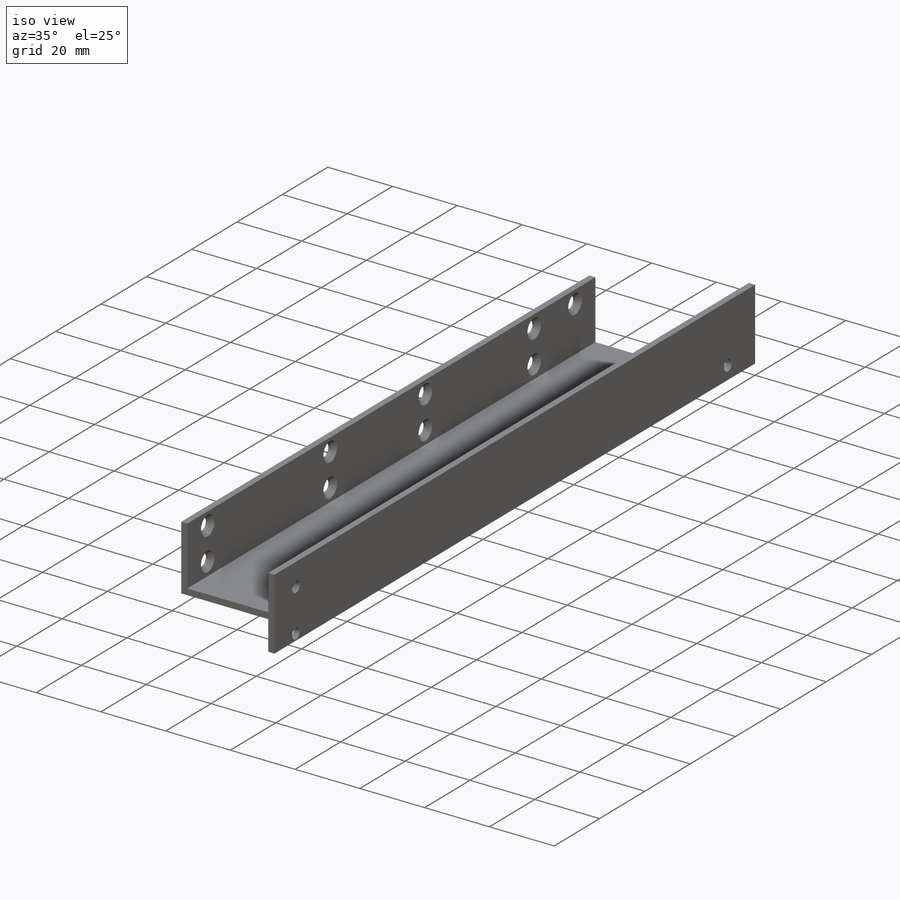
[diagram: iso view]
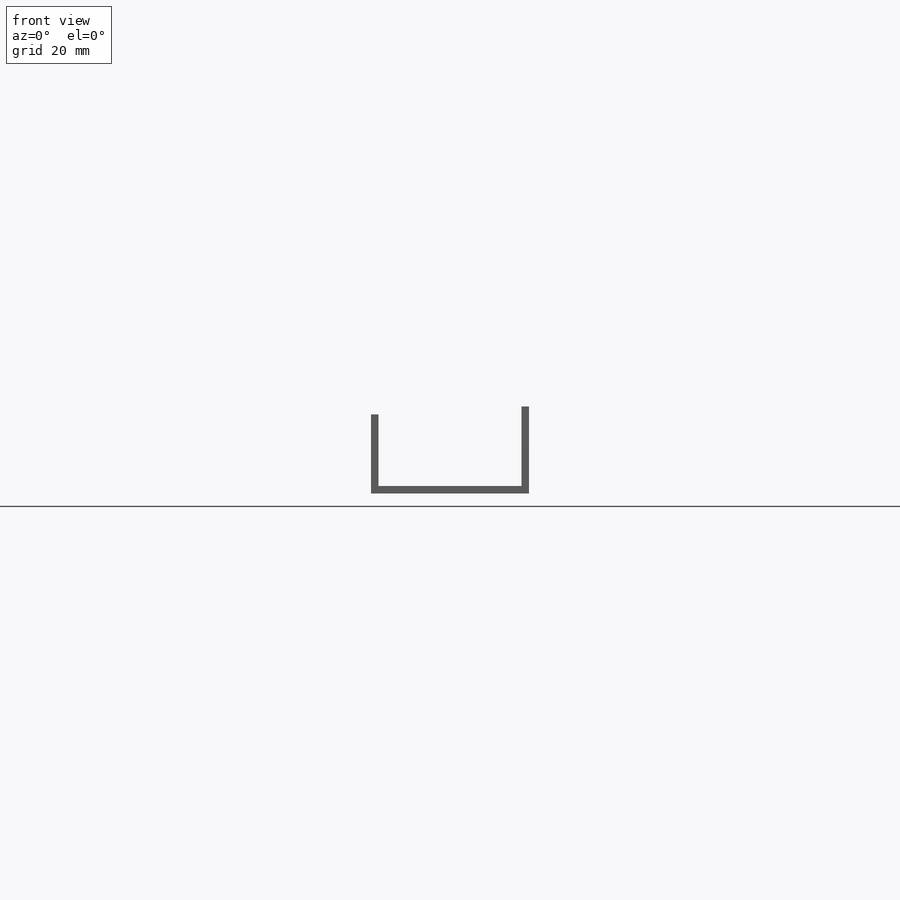
[diagram: front view]
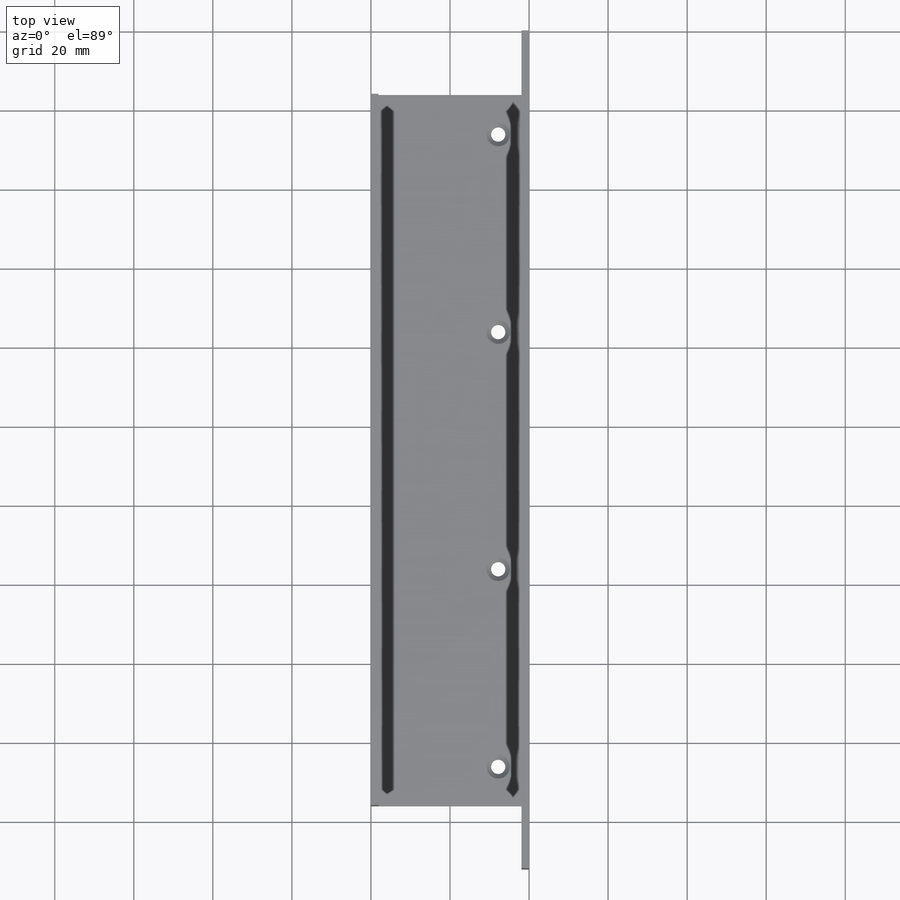
[diagram: top view]
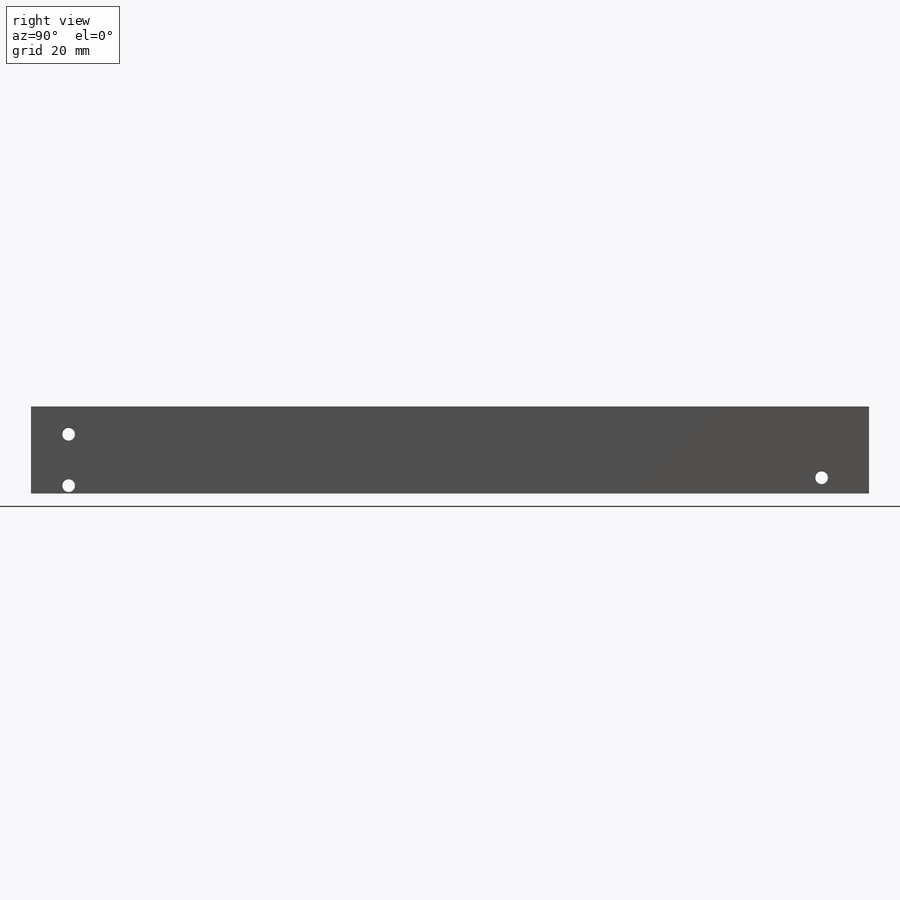
[diagram: right view]
SOLIDWORKS PART (.sldprt)
format: sldprt  version: not decoded by parser v0  size: 376,320 bytes
history: native  units: mm
features: sketch x10, plane x3, cut_extrude x3, hole x3, material x1, extrude x1 (+13 scaffold rows collapsed)
feature tree (34):
  scaffold x13  (default folders/planes/origin — collapsed)
  material  "6063-T1"
  plane  "Спереди"
  plane  "Сверху"
  plane  "Справа"
  sketch  "Эскиз1"  dims[D2=40.0mm D3=20.0mm D4=22.0mm D1=1.9mm]
  extrude  "Бобышка-Вытянуть1"  Depth=212mm
  sketch  "Эскиз2"  dims[D1=16.0mm D2=16.0mm]
  cut_extrude  "Вырез-Вытянуть1"  [1 undecoded]
  sketch  "Эскиз3"  dims[D1=20.0mm D2=6.0mm D3=2.0mm]
  cut_extrude  "Вырез-Вытянуть2"  [1 undecoded]
  hole  "Зенковка для винта с потайной головкой M31"  [1 undecoded]
  sketch  "Эскиз5"  dims[c1.D1=48.0mm c1.D2=16.5mm c1.D3=43.0mm c1.D4=86.5mm c2.D1=9.0mm c2.D2=54.0mm c2.D3=42.0mm c2.D4=48.0mm c2.D5=108.0mm c2.D6=10.0mm c2.D7=4.0mm]
  sketch  "Эскиз4"  dims[hole-wizard template sketch: 46 standard entries collapsed; hole parameters kept: c15.Диаметр сквозного отверстия=3.6mm c15.Глубина сквозного отверстия=1.9mm c15.Диаметр передней зенковки=6.0mm c15.D4=~3.666174mm c15.Угол передней зенковки=90.0deg c15.Диаметр задней зенковки=3.8mm c15.D6=~9.919017mm c15.Угол задней зенковки=90.0deg]
  sketch  "Эскиз6"  dims[D1=10.0mm D2=7.0mm D3=8.0mm]
  cut_extrude  "Вырез-Вытянуть3"  [1 undecoded]
  hole  "Отверстие с зазором M31"  [1 undecoded]
  sketch  "Эскиз8"  dims[D1=2.0mm D2=13.0mm D3=4.0mm]
  sketch  "Эскиз7"  dims[hole-wizard template sketch: 47 standard entries collapsed; hole parameters kept: c15.Глубина сквозного отверстия=1.9mm c15.Диаметр передней зенковки=3.4mm c15.D4=~3.666174mm c15.Угол передней зенковки=90.0deg c15.Диаметр задней зенковки=3.4mm c15.D6=~9.919017mm c15.Угол задней зенковки=90.0deg]
  hole  "Зенковка для винта с потайной головкой M32"  [1 undecoded]
  sketch  "Эскиз10"  dims[D1=50.0mm D2=60.0mm D3=50.0mm D4=10.0mm D5=5.9mm]
  sketch  "Эскиз9"  dims[hole-wizard template sketch: 46 standard entries collapsed; hole parameters kept: c15.Диаметр сквозного отверстия=3.6mm c15.Глубина сквозного отверстия=1.9mm c15.Диаметр передней зенковки=6.0mm c15.D4=~3.666174mm c15.Угол передней зенковки=90.0deg c15.Диаметр задней зенковки=3.8mm c15.D6=~9.919017mm c15.Угол задней зенковки=90.0deg]
decode coverage: 11 of 17 modeling features carry decoded parameters
note: ~ marks probable driven/reference dimensions
note: 6 parameter values undecoded
summary: no parameter record found for 6 features
note: suppression state not decoded; provenance and decode notes live in map.json
